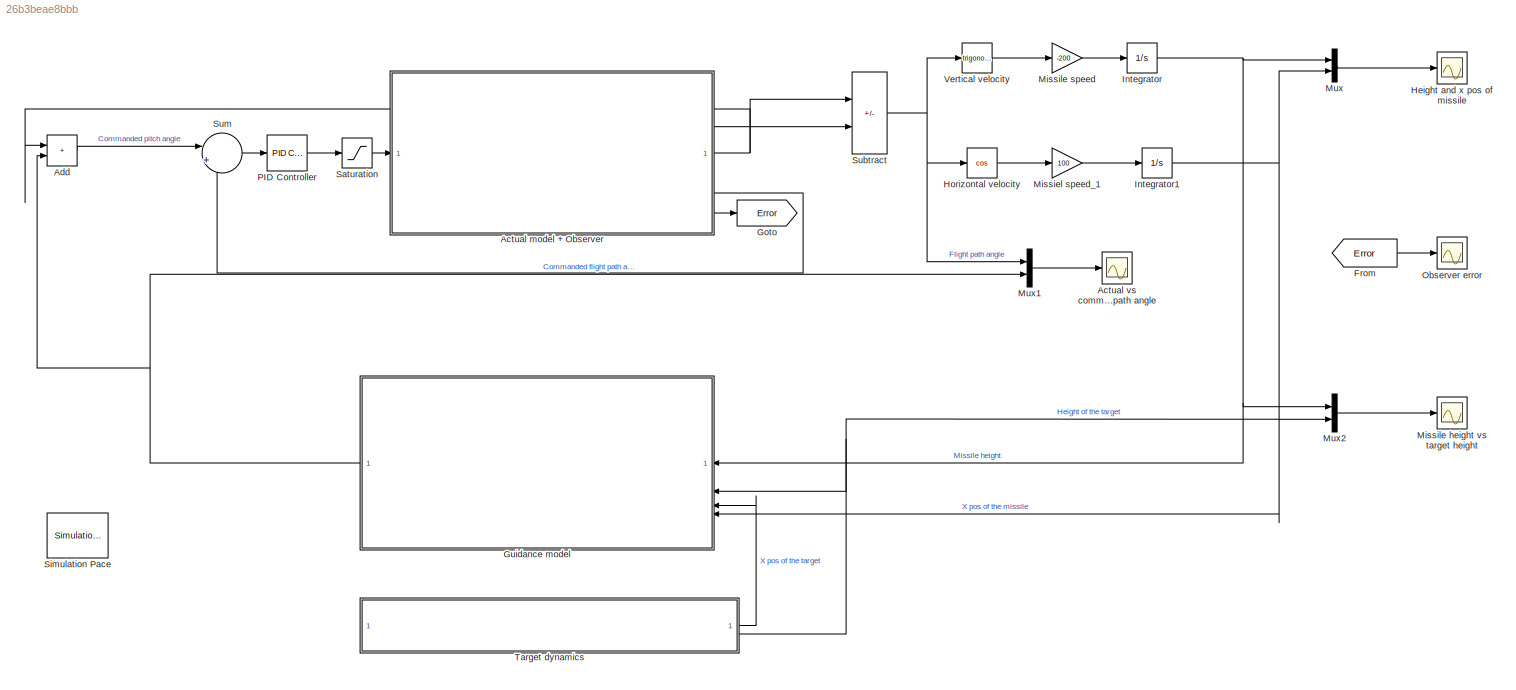
MODEL slx_26b3beae8bbb
KIND model
CONFIG AbsTol = auto
CONFIG EnableMultiTasking = off
CONFIG FixedStep = auto
CONFIG MaxStep = auto
CONFIG MinStep = auto
CONFIG RelTol = 1e-3
CONFIG SampleTimeConstraint = Unconstrained
CONFIG SolverName = VariableStepAuto
CONFIG StartTime = 0.0
CONFIG StopTime = 25
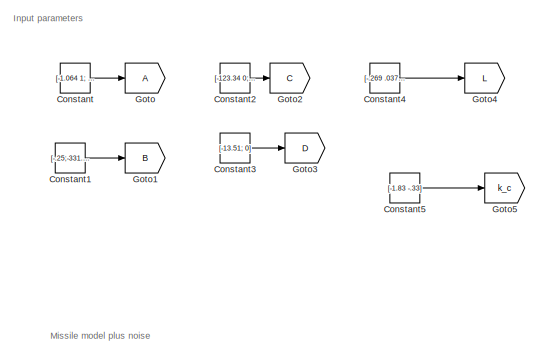
[diagram: Actual model + Observer - part 1/5, top left region]
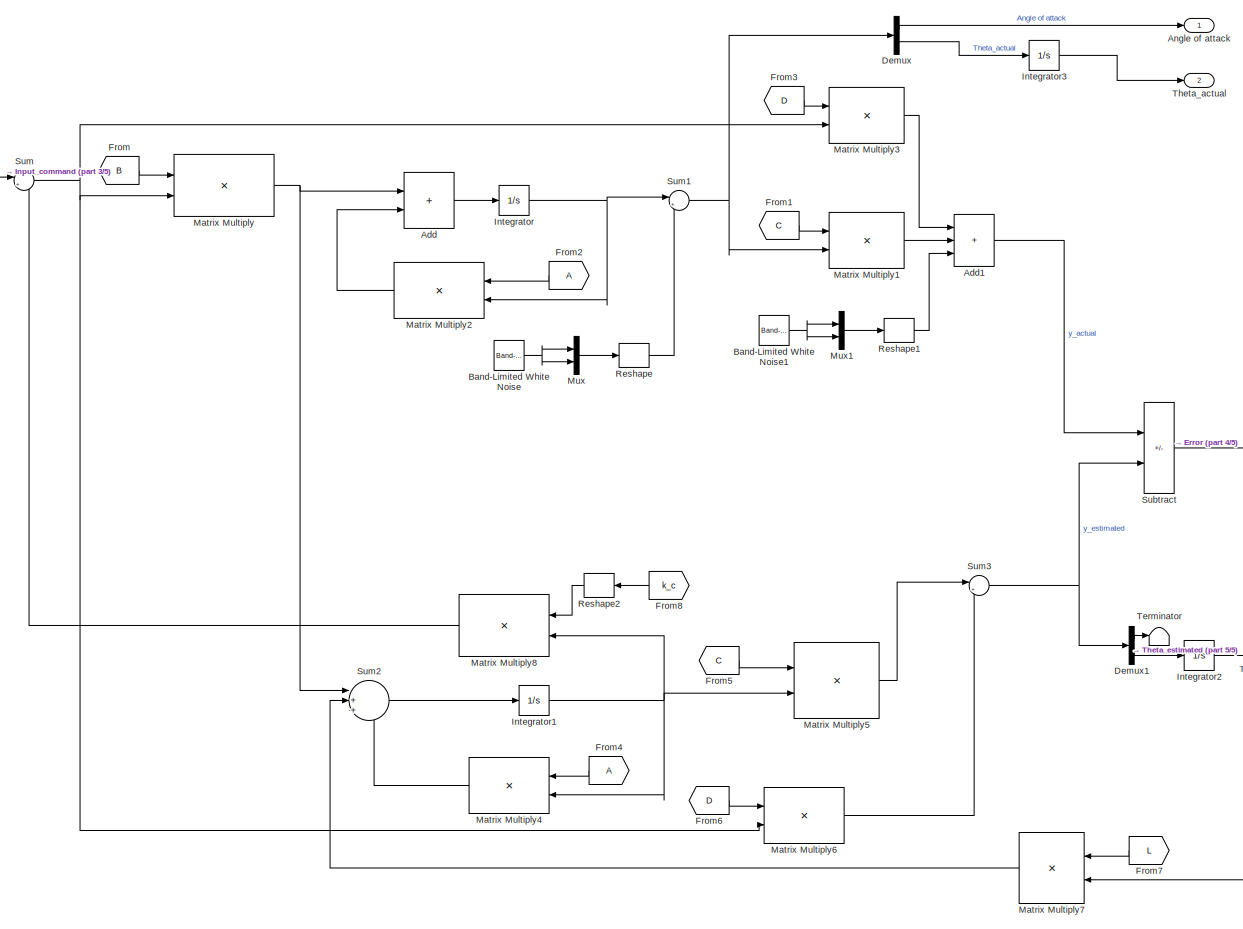
[diagram: Actual model + Observer - part 2/5, full width, middle band]
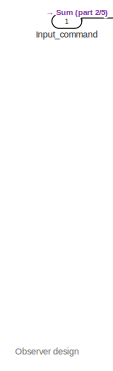
[diagram: Actual model + Observer - part 3/5, middle left region]
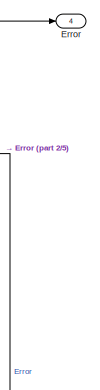
[diagram: Actual model + Observer - part 4/5, middle right region]
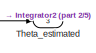
[diagram: Actual model + Observer - part 5/5, bottom right region]
BLOCK [SubSystem] Actual model + Observer
BLOCK [Sum] Actual model + Observer/Add
  IconShape = rectangular
BLOCK [Sum] Actual model + Observer/Add1
  IconShape = rectangular
  Inputs = +++
BLOCK [Outport] Actual model + Observer/Angle of attack
BLOCK [Reference] Actual model + Observer/Band-Limited White Noise  REF=simulink/Sources/Band-Limited
White Noise
  SourceBlock = simulink/Sources/Band-Limited\nWhite Noise
  SourceType = Band-Limited White Noise.
BLOCK [Reference] Actual model + Observer/Band-Limited White Noise1  REF=simulink/Sources/Band-Limited
White Noise
  SourceBlock = simulink/Sources/Band-Limited\nWhite Noise
  SourceType = Band-Limited White Noise.
BLOCK [Constant] Actual model + Observer/Constant
  Value = [-1.064 1; 290.26 0]
BLOCK [Constant] Actual model + Observer/Constant1
  Value = [-.25;-331.4]
BLOCK [Constant] Actual model + Observer/Constant2
  Value = [-123.34 0; 0 1]
BLOCK [Constant] Actual model + Observer/Constant3
  Value = [-13.51; 0]
BLOCK [Constant] Actual model + Observer/Constant4
  Value = [-.269 .0374; -4.6127 .6585]
BLOCK [Constant] Actual model + Observer/Constant5
  Value = [-1.83 -.33]
BLOCK [Demux] Actual model + Observer/Demux
  Outputs = 2
BLOCK [Demux] Actual model + Observer/Demux1
  Outputs = 2
BLOCK [Outport] Actual model + Observer/Error
  Port = 4
BLOCK [From] Actual model + Observer/From
  GotoTag = B
BLOCK [From] Actual model + Observer/From1
  GotoTag = C
BLOCK [From] Actual model + Observer/From2
BLOCK [From] Actual model + Observer/From3
  GotoTag = D
BLOCK [From] Actual model + Observer/From4
BLOCK [From] Actual model + Observer/From5
  GotoTag = C
BLOCK [From] Actual model + Observer/From6
  GotoTag = D
BLOCK [From] Actual model + Observer/From7
  GotoTag = L
BLOCK [From] Actual model + Observer/From8
  GotoTag = k_c
BLOCK [Goto] Actual model + Observer/Goto
BLOCK [Goto] Actual model + Observer/Goto1
  GotoTag = B
BLOCK [Goto] Actual model + Observer/Goto2
  GotoTag = C
BLOCK [Goto] Actual model + Observer/Goto3
  GotoTag = D
BLOCK [Goto] Actual model + Observer/Goto4
  GotoTag = L
BLOCK [Goto] Actual model + Observer/Goto5
  GotoTag = k_c
BLOCK [Inport] Actual model + Observer/Input_command
BLOCK [Integrator] Actual model + Observer/Integrator
BLOCK [Integrator] Actual model + Observer/Integrator1
BLOCK [Integrator] Actual model + Observer/Integrator2
BLOCK [Integrator] Actual model + Observer/Integrator3
BLOCK [Product] Actual model + Observer/Matrix Multiply
  Multiplication = Matrix(*)
BLOCK [Product] Actual model + Observer/Matrix Multiply1
  Multiplication = Matrix(*)
BLOCK [Product] Actual model + Observer/Matrix Multiply2
  Multiplication = Matrix(*)
BLOCK [Product] Actual model + Observer/Matrix Multiply3
  Multiplication = Matrix(*)
BLOCK [Product] Actual model + Observer/Matrix Multiply4
  Multiplication = Matrix(*)
BLOCK [Product] Actual model + Observer/Matrix Multiply5
  Multiplication = Matrix(*)
BLOCK [Product] Actual model + Observer/Matrix Multiply6
  Multiplication = Matrix(*)
BLOCK [Product] Actual model + Observer/Matrix Multiply7
  Multiplication = Matrix(*)
BLOCK [Product] Actual model + Observer/Matrix Multiply8
  Multiplication = Matrix(*)
BLOCK [Mux] Actual model + Observer/Mux
  DisplayOption = bar
  Inputs = 2
BLOCK [Mux] Actual model + Observer/Mux1
  DisplayOption = bar
  Inputs = 2
BLOCK [Reshape] Actual model + Observer/Reshape
  OutputDimensionality = Customize
  OutputDimensions = [2,1]
BLOCK [Reshape] Actual model + Observer/Reshape1
  OutputDimensionality = Customize
  OutputDimensions = [2,1]
BLOCK [Reshape] Actual model + Observer/Reshape2
  OutputDimensionality = Customize
  OutputDimensions = [1,2]
BLOCK [Sum] Actual model + Observer/Subtract
  IconShape = rectangular
  Inputs = +-
BLOCK [Sum] Actual model + Observer/Sum
  Inputs = |+-
BLOCK [Sum] Actual model + Observer/Sum1
  Inputs = |++
BLOCK [Sum] Actual model + Observer/Sum2
  Inputs = |+++
BLOCK [Sum] Actual model + Observer/Sum3
  Inputs = |++
BLOCK [Terminator] Actual model + Observer/Terminator
BLOCK [Outport] Actual model + Observer/Theta_actual
  Port = 2
BLOCK [Outport] Actual model + Observer/Theta_estimated
  Port = 3
BLOCK [Scope] Actual vs commanded flight path angle
  Floating = off
  NumInputPorts = 1
  ScopeSpecificationString = Simulink.scopes.TimeScopeBlockCfg('CurrentConfiguration', extmgr.ConfigurationSet(extmgr.Configuration('Core','General UI',true),extmgr.Configuration('Core','Source UI',true),extmgr.Configuration('Sources','WiredSimulink',true,'DataLoggingVariableName','ScopeData1'),extmgr.Configuration('Visuals','Time Domain',true,'SerializedDisplays',{struct('MinYLimReal','-1.96349','MaxYLimReal','1.9635','YLabe...<+1429ch>
BLOCK [Sum] Add
  IconShape = rectangular
BLOCK [From] From
  GotoTag = Error
BLOCK [Goto] Goto
  GotoTag = Error
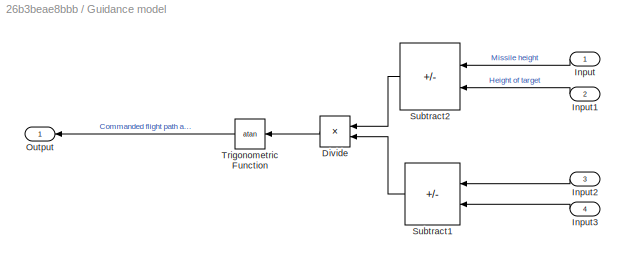
BLOCK [SubSystem] Guidance model
BLOCK [Product] Guidance model/Divide
  Inputs = */
BLOCK [Inport] Guidance model/Input
BLOCK [Inport] Guidance model/Input1
  Port = 2
BLOCK [Inport] Guidance model/Input2
  Port = 3
BLOCK [Inport] Guidance model/Input3
  Port = 4
BLOCK [Outport] Guidance model/Output
BLOCK [Sum] Guidance model/Subtract1
  IconShape = rectangular
  Inputs = +-
BLOCK [Sum] Guidance model/Subtract2
  IconShape = rectangular
  Inputs = +-
BLOCK [Trigonometry] Guidance model/Trigonometric Function
  Operator = atan
BLOCK [Scope] Height and x pos of missile
  Floating = off
  NumInputPorts = 1
  ScopeSpecificationString = Simulink.scopes.TimeScopeBlockCfg('CurrentConfiguration', extmgr.ConfigurationSet(extmgr.Configuration('Core','General UI',true),extmgr.Configuration('Core','Source UI',true),extmgr.Configuration('Sources','WiredSimulink',true,'DataLoggingVariableName','ScopeData1'),extmgr.Configuration('Visuals','Time Domain',true,'SerializedDisplays',{struct('MinYLimReal','-668.95952','MaxYLimReal','2566.33376',...<+1441ch>
BLOCK [Trigonometry] Horizontal velocity
  Operator = cos
BLOCK [Integrator] Integrator
  InitialCondition = 1
BLOCK [Integrator] Integrator1
BLOCK [Gain] Missiel speed_1
  Gain = 100
BLOCK [Scope] Missile height vs target height
  Floating = off
  NumInputPorts = 1
  ScopeSpecificationString = Simulink.scopes.TimeScopeBlockCfg('CurrentConfiguration', extmgr.ConfigurationSet(extmgr.Configuration('Core','General UI',true),extmgr.Configuration('Core','Source UI',true),extmgr.Configuration('Sources','WiredSimulink',true,'DataLoggingVariableName','ScopeData2'),extmgr.Configuration('Visuals','Time Domain',true,'SerializedDisplays',{struct('MinYLimReal','-65.22729','MaxYLimReal','587.04559','Y...<+1433ch>
BLOCK [Gain] Missile speed
  Gain = -200
BLOCK [Mux] Mux
  DisplayOption = bar
  Inputs = 2
BLOCK [Mux] Mux1
  DisplayOption = bar
  Inputs = 2
BLOCK [Mux] Mux2
  DisplayOption = bar
  Inputs = 2
BLOCK [Scope] Observer error
  Floating = off
  NumInputPorts = 1
  ScopeSpecificationString = Simulink.scopes.TimeScopeBlockCfg('CurrentConfiguration', extmgr.ConfigurationSet(extmgr.Configuration('Core','General UI',true),extmgr.Configuration('Core','Source UI',true),extmgr.Configuration('Sources','WiredSimulink',true,'DataLoggingVariableName','ScopeData1'),extmgr.Configuration('Visuals','Time Domain',true,'SerializedDisplays',{struct('MinYLimReal','-0.08738','MaxYLimReal','0.09726','YLab...<+1407ch>
BLOCK [Reference] PID Controller  REF=slpidlib/PID Controller
  LibrarySourceBlock = simulink/Continuous/PID Controller
  SourceBlock = slpidlib/PID Controller
  SourceType = PID 1dof
BLOCK [Saturate] Saturation
  LowerLimit = -1.5
  UpperLimit = 1.5
BLOCK [Reference] Simulation Pace  REF=aerolibanimutils/Simulation Pace
  AttributesFormatString = %<SleepMode>\n%<SimulationPace> sec/sec
  SourceBlock = aerolibanimutils/Simulation Pace
  SourceType = Simulation Pace
BLOCK [Sum] Subtract
  IconShape = rectangular
  Inputs = -+
BLOCK [Sum] Sum
  Inputs = |+-
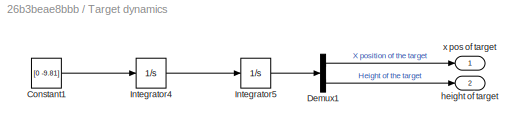
BLOCK [SubSystem] Target dynamics
BLOCK [Constant] Target dynamics/Constant1
  Value = [0 -9.81]
BLOCK [Demux] Target dynamics/Demux1
  Outputs = 2
BLOCK [Integrator] Target dynamics/Integrator4
  InitialCondition = [100 100]
BLOCK [Integrator] Target dynamics/Integrator5
  InitialCondition = [0 0]
BLOCK [Outport] Target dynamics/height of target
  Port = 2
BLOCK [Outport] Target dynamics/x pos of target
BLOCK [Trigonometry] Vertical velocity
ANNOTATION Actual model + Observer: Input parameters
ANNOTATION Actual model + Observer: Missile model plus noise
ANNOTATION Actual model + Observer: Observer design
LINE Actual model + Observer/Add1:1 -> Actual model + Observer/Subtract:1
LINE Actual model + Observer/Add:1 -> Actual model + Observer/Integrator:1
NET Actual model + Observer/Band-Limited White Noise1:1 -> Actual model + Observer/Mux1:1, Actual model + Observer/Mux1:2
NET Actual model + Observer/Band-Limited White Noise:1 -> Actual model + Observer/Mux:1, Actual model + Observer/Mux:2
LINE Actual model + Observer/Constant1:1 -> Actual model + Observer/Goto1:1
LINE Actual model + Observer/Constant2:1 -> Actual model + Observer/Goto2:1
LINE Actual model + Observer/Constant3:1 -> Actual model + Observer/Goto3:1
LINE Actual model + Observer/Constant4:1 -> Actual model + Observer/Goto4:1
LINE Actual model + Observer/Constant5:1 -> Actual model + Observer/Goto5:1
LINE Actual model + Observer/Constant:1 -> Actual model + Observer/Goto:1
LINE Actual model + Observer/Demux1:1 -> Actual model + Observer/Terminator:1
LINE Actual model + Observer/Demux1:2 -> Actual model + Observer/Integrator2:1
LINE Actual model + Observer/Demux:1 -> Actual model + Observer/Angle of attack:1
LINE Actual model + Observer/Demux:2 -> Actual model + Observer/Integrator3:1
LINE Actual model + Observer/From1:1 -> Actual model + Observer/Matrix Multiply1:1
LINE Actual model + Observer/From2:1 -> Actual model + Observer/Matrix Multiply2:1
LINE Actual model + Observer/From3:1 -> Actual model + Observer/Matrix Multiply3:1
LINE Actual model + Observer/From4:1 -> Actual model + Observer/Matrix Multiply4:1
LINE Actual model + Observer/From5:1 -> Actual model + Observer/Matrix Multiply5:1
LINE Actual model + Observer/From6:1 -> Actual model + Observer/Matrix Multiply6:1
LINE Actual model + Observer/From7:1 -> Actual model + Observer/Matrix Multiply7:1
LINE Actual model + Observer/From8:1 -> Actual model + Observer/Reshape2:1
LINE Actual model + Observer/From:1 -> Actual model + Observer/Matrix Multiply:1
LINE Actual model + Observer/Input_command:1 -> Actual model + Observer/Sum:1
NET Actual model + Observer/Integrator1:1 -> Actual model + Observer/Matrix Multiply4:2, Actual model + Observer/Matrix Multiply5:2, Actual model + Observer/Matrix Multiply8:2
LINE Actual model + Observer/Integrator2:1 -> Actual model + Observer/Theta_estimated:1
LINE Actual model + Observer/Integrator3:1 -> Actual model + Observer/Theta_actual:1
NET Actual model + Observer/Integrator:1 -> Actual model + Observer/Matrix Multiply2:2, Actual model + Observer/Sum1:1
LINE Actual model + Observer/Matrix Multiply1:1 -> Actual model + Observer/Add1:2
LINE Actual model + Observer/Matrix Multiply2:1 -> Actual model + Observer/Add:2
LINE Actual model + Observer/Matrix Multiply3:1 -> Actual model + Observer/Add1:1
LINE Actual model + Observer/Matrix Multiply4:1 -> Actual model + Observer/Sum2:3
LINE Actual model + Observer/Matrix Multiply5:1 -> Actual model + Observer/Sum3:1
LINE Actual model + Observer/Matrix Multiply6:1 -> Actual model + Observer/Sum3:2
LINE Actual model + Observer/Matrix Multiply7:1 -> Actual model + Observer/Sum2:2
LINE Actual model + Observer/Matrix Multiply8:1 -> Actual model + Observer/Sum:2
NET Actual model + Observer/Matrix Multiply:1 -> Actual model + Observer/Add:1, Actual model + Observer/Sum2:1
LINE Actual model + Observer/Mux1:1 -> Actual model + Observer/Reshape1:1
LINE Actual model + Observer/Mux:1 -> Actual model + Observer/Reshape:1
LINE Actual model + Observer/Reshape1:1 -> Actual model + Observer/Add1:3
LINE Actual model + Observer/Reshape2:1 -> Actual model + Observer/Matrix Multiply8:1
LINE Actual model + Observer/Reshape:1 -> Actual model + Observer/Sum1:2
NET Actual model + Observer/Subtract:1 -> Actual model + Observer/Error:1, Actual model + Observer/Matrix Multiply7:2
NET Actual model + Observer/Sum1:1 -> Actual model + Observer/Demux:1, Actual model + Observer/Matrix Multiply1:2
LINE Actual model + Observer/Sum2:1 -> Actual model + Observer/Integrator1:1
NET Actual model + Observer/Sum3:1 -> Actual model + Observer/Demux1:1, Actual model + Observer/Subtract:2
NET Actual model + Observer/Sum:1 -> Actual model + Observer/Matrix Multiply3:2, Actual model + Observer/Matrix Multiply6:2, Actual model + Observer/Matrix Multiply:2
NET Actual model + Observer:1 -> Add:1, Subtract:1
LINE Actual model + Observer:2 -> Subtract:2
LINE Actual model + Observer:3 -> Sum:2
LINE Actual model + Observer:4 -> Goto:1
LINE Add:1 -> Sum:1
LINE From:1 -> Observer error:1
LINE Guidance model/Divide:1 -> Guidance model/Trigonometric Function:1
LINE Guidance model/Input1:1 -> Guidance model/Subtract2:2
LINE Guidance model/Input2:1 -> Guidance model/Subtract1:1
LINE Guidance model/Input3:1 -> Guidance model/Subtract1:2
LINE Guidance model/Input:1 -> Guidance model/Subtract2:1
LINE Guidance model/Subtract1:1 -> Guidance model/Divide:2
LINE Guidance model/Subtract2:1 -> Guidance model/Divide:1
LINE Guidance model/Trigonometric Function:1 -> Guidance model/Output:1
NET Guidance model:1 -> Add:2, Mux1:2
LINE Horizontal velocity:1 -> Missiel speed_1:1
NET Integrator1:1 -> Guidance model:4, Mux:2
NET Integrator:1 -> Guidance model:1, Mux2:1, Mux:1
LINE Missiel speed_1:1 -> Integrator1:1
LINE Missile speed:1 -> Integrator:1
LINE Mux1:1 -> Actual vs commanded flight path angle:1
LINE Mux2:1 -> Missile height vs target height:1
LINE Mux:1 -> Height and x pos of missile:1
LINE PID Controller:1 -> Saturation:1
LINE Saturation:1 -> Actual model + Observer:1
NET Subtract:1 -> Horizontal velocity:1, Mux1:1, Vertical velocity:1
LINE Sum:1 -> PID Controller:1
LINE Target dynamics/Constant1:1 -> Target dynamics/Integrator4:1
LINE Target dynamics/Demux1:1 -> Target dynamics/x pos of target:1
LINE Target dynamics/Demux1:2 -> Target dynamics/height of target:1
LINE Target dynamics/Integrator4:1 -> Target dynamics/Integrator5:1
LINE Target dynamics/Integrator5:1 -> Target dynamics/Demux1:1
LINE Target dynamics:1 -> Guidance model:3
NET Target dynamics:2 -> Guidance model:2, Mux2:2
LINE Vertical velocity:1 -> Missile speed:1
note: NET lines group one-source signal fan-out (src -> all destinations, sorted); 1:1 wires keep LINE
